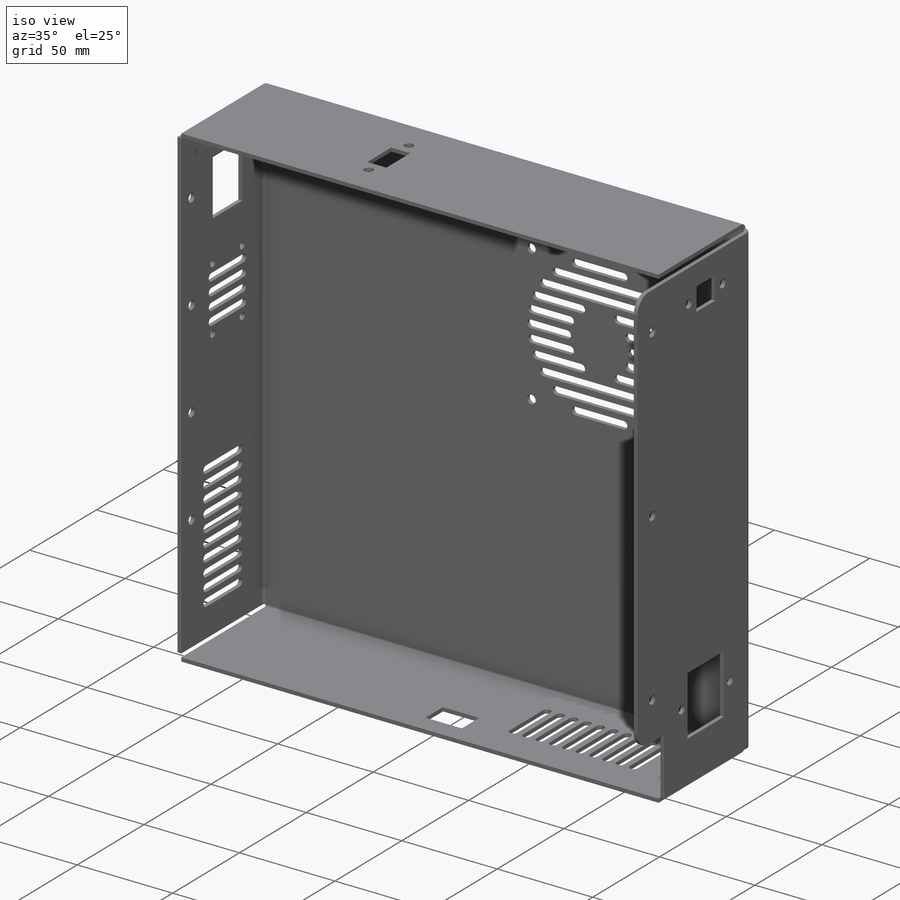
[diagram: iso view]
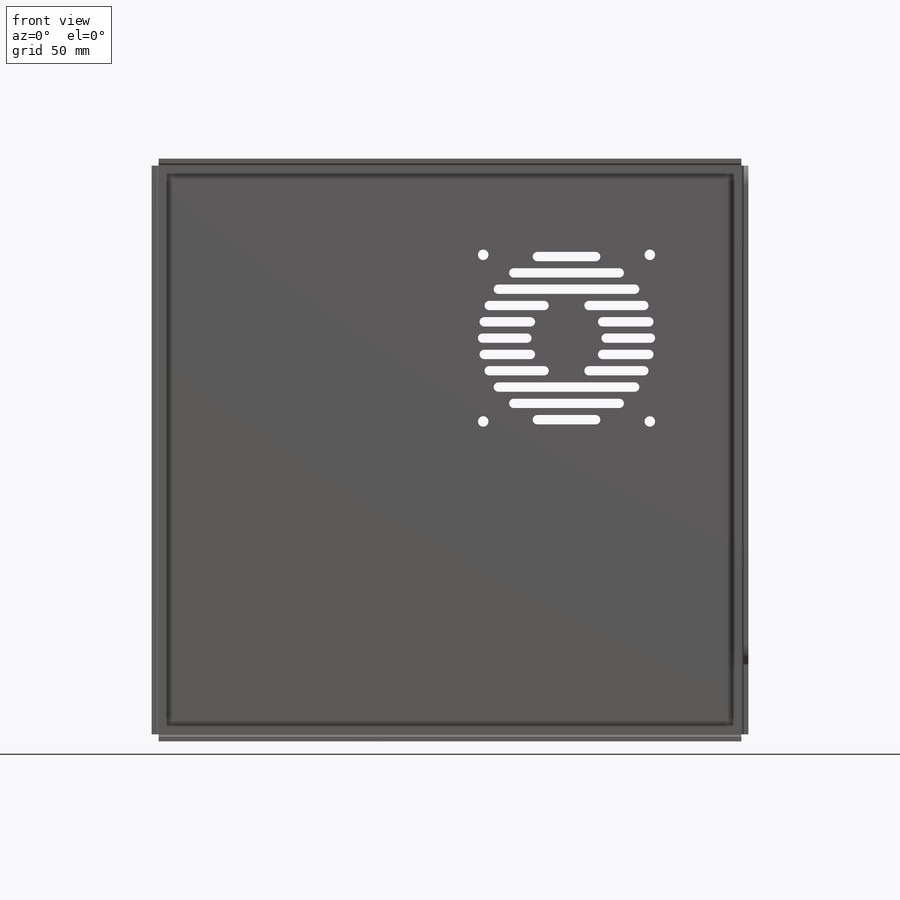
[diagram: front view]
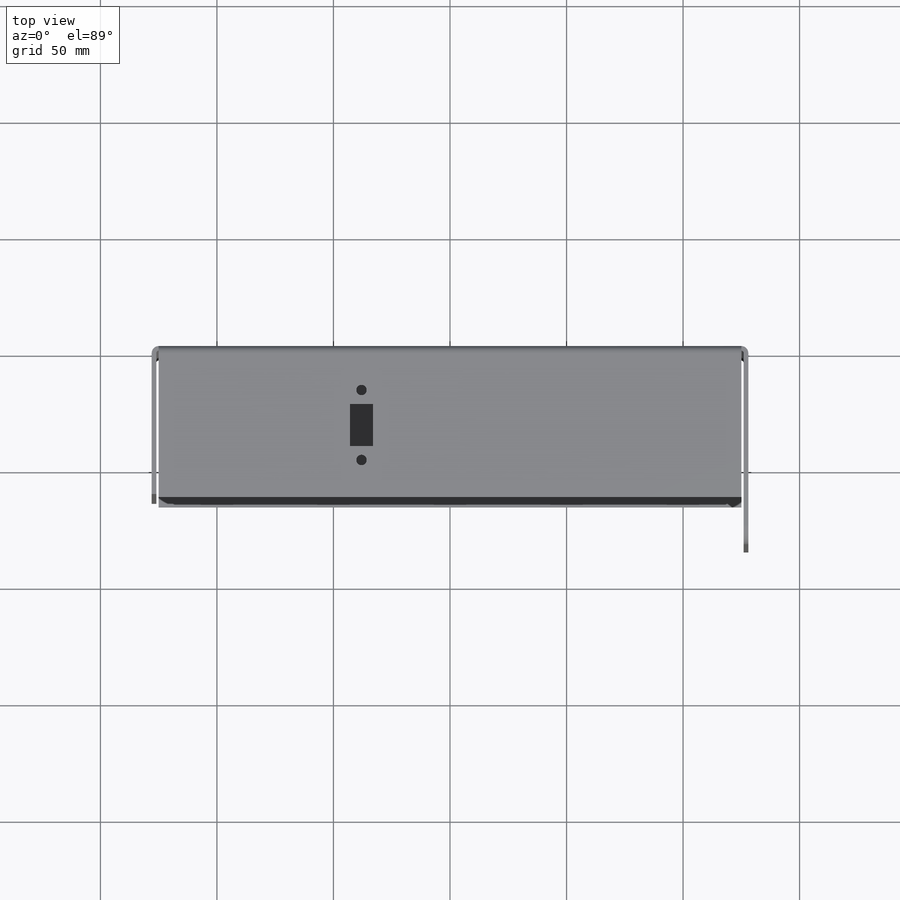
[diagram: top view]
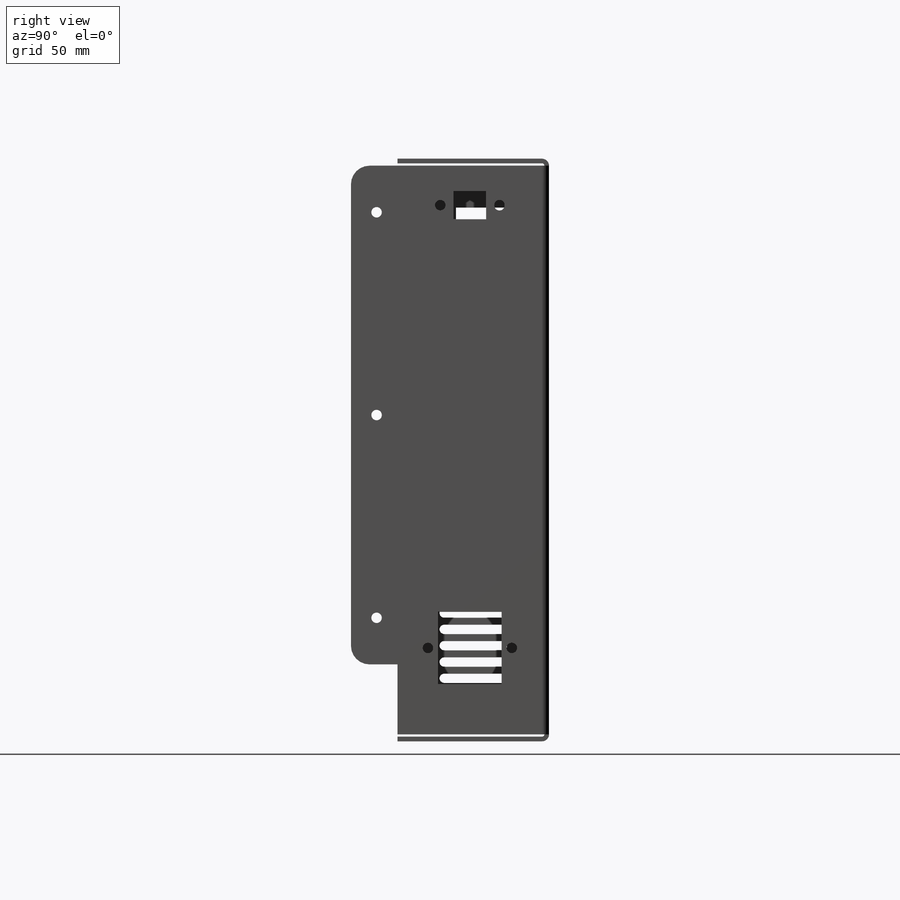
[diagram: right view]
SOLIDWORKS PART (.sldprt)
format: sldprt  version: not decoded by parser v0  size: 685,056 bytes
history: native  units: mm
features: sketch x10, cut_extrude x7, extrude x3, fillet x3, material x1 (+11 scaffold rows collapsed)
feature tree (35):
  scaffold x11  (default folders/planes/origin — collapsed)
  material  "6061-T6 (SS)"
  sketch  "Sketch1"  dims[D1=256.0mm D2=250.0mm]
  extrude  "Boss-Extrude1"  Depth=2mm
  sketch  "Sketch2"  dims[D1=2.0mm D2=2.0mm D3=2.0mm D4=2.0mm]
  extrude  "Boss-Extrude2"  Depth=63mm
  fillet  "Fillet1"  Radius=1mm
  fillet  "Fillet2"  Radius=3mm
  sketch  "Sketch3"
  cut_extrude  "Cut-Extrude1"  [1 undecoded]
  sketch  "Sketch4"  dims[D2=30.0mm D1=0.0mm]
  extrude  "Boss-Extrude3"  Depth=20mm
  sketch  "Sketch5"  dims[c1.D8=2.0mm c1.D9=4.5mm c1.D13=28.5mm c1.D17=3.5mm c1.D16=2.0mm c1.D21=2.0mm c1.D1=20.0mm c1.D2=22.0mm c1.D3=30.4mm c1.D4=20.0mm c1.D5=7.0mm c1.D6=~34.207969mm c1.D7=20.0mm c2.D8=~14.923727mm c2.D6=20.0mm c3.D8=11.0881mm c3.D10=40.0mm c3.D3=200.0mm c3.D11=29.0mm c3.D12=33.5mm c3.D14=22.0mm c3.D15=160.0mm c3.D16=26.0mm c3.D18=~24.772947mm c3.D19=4.5mm c3.D20=~4.92911mm c4.D19=7.0mm c4.D20=7.0mm c4.D21=7.0mm c4.D22=7.0mm c5.D21=7.0mm c5.D16=3.5mm c5.D18=3.5mm c5.D19=24.0mm c5.D22=7.0mm c5.D23=~24.772947mm]
  cut_extrude  "Cut-Extrude2"  Depth=15mm
  sketch  "Sketch6"  dims[c1.D3=4.5mm c1.D10=4.5mm c1.D1=27.3mm c1.D2=36.0mm c1.D4=31.1mm c1.D5=40.0mm c1.D6=14.0mm c1.D7=12.0mm c1.D8=25.4mm c1.D9=50.0mm c1.D11=11.0mm c1.D12=20.0mm c1.D13=20.0mm c2.D9=230.0mm]
  cut_extrude  "Cut-Extrude3"  Depth=15mm
  fillet  "Fillet3"  Radius=8mm
  sketch  "Sketch7"  dims[D5=4.5mm D1=18.0mm D2=10.0mm D3=30.0mm D4=90.0mm]
  cut_extrude  "Cut-Extrude4"  Depth=15mm
  sketch  "Sketch8"  dims[D1=4.5mm D2=30.0mm D3=76.0mm D5=2.0mm D4=7.0mm D6=25.0mm]
  cut_extrude  "Cut-Extrude5"  Depth=15mm
  sketch  "Sketch9"  dims[c1.D2=2.0mm c1.D1=20.0mm c2.D2=~19.67255mm c2.D3=7.0mm c2.D4=20.0mm c2.D5=30.0mm c2.D6=2.0mm c2.D7=2.0mm c2.D8=2.0mm c2.D9=2.0mm]
  cut_extrude  "Cut-Extrude6"  Depth=15mm
  sketch  "Sketch10"  dims[D1=0.0mm]
  cut_extrude  "Cut-Extrude7"  Depth=1.5mm
decode coverage: 21 of 23 modeling features carry decoded parameters
note: ~ marks probable driven/reference dimensions
note: 1 parameter value undecoded
note: suppression state not decoded; provenance and decode notes live in map.json
